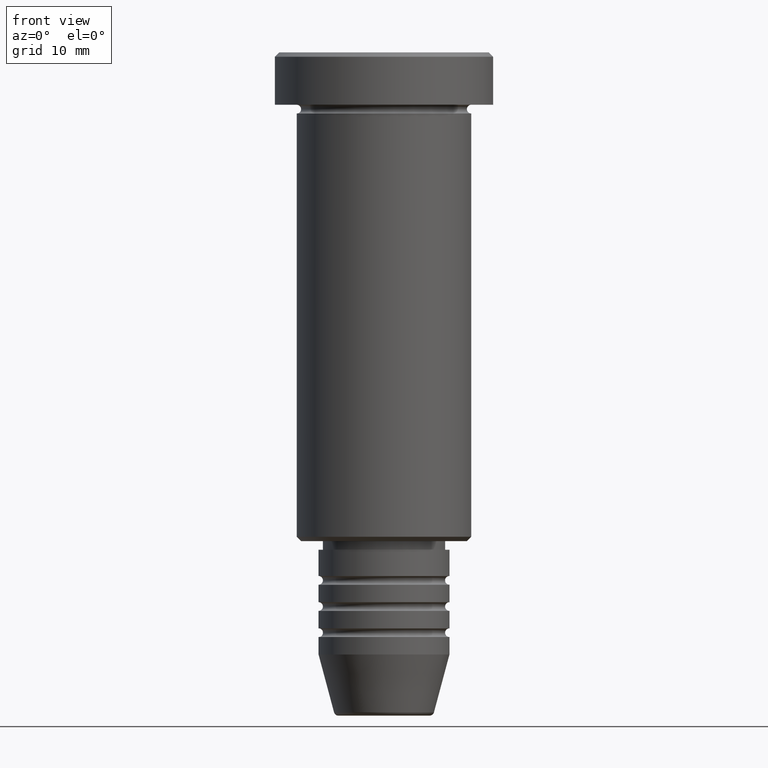
[diagram: clean part render]
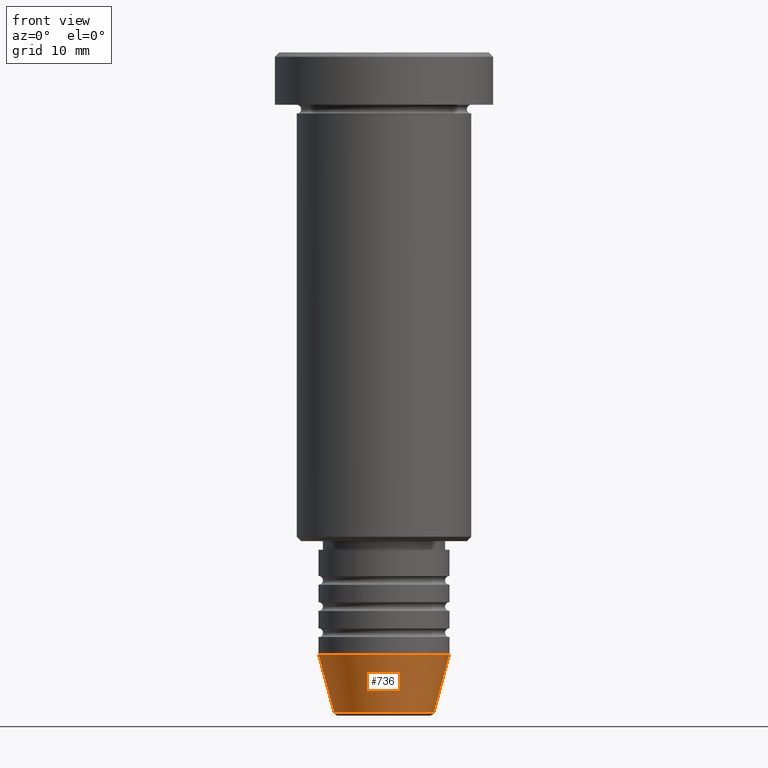
[diagram: same view with one face highlighted and labeled with its STEP entity id]
A machine part, front view. The second image highlights one B-rep face of the part: STEP entity #736.
In plain terms, the highlighted conical surface has half-angle 15 deg.
Its self-contained STEP definition (entity closure, byte-faithful):
#33 = AXIS2_PLACEMENT_3D ( 'NONE', #481, #849, #108 ) ;
#45 = DIRECTION ( 'NONE',  ( 1.000000000000000000, 0.000000000000000000, 0.000000000000000000 ) ) ;
#54 = CARTESIAN_POINT ( 'NONE',  ( 0.000000000000000000, 0.000000000000000000, -69.00000000000000000 ) ) ;
#58 = VERTEX_POINT ( 'NONE', #288 ) ;
#108 = DIRECTION ( 'NONE',  ( 1.000000000000000000, 0.000000000000000000, 0.000000000000000000 ) ) ;
#129 = LINE ( 'NONE', #667, #439 ) ;
#134 = EDGE_CURVE ( 'NONE', #1095, #1103, #199, .T. ) ;
#171 = ORIENTED_EDGE ( 'NONE', *, *, #801, .F. ) ;
#199 = CIRCLE ( 'NONE', #271, 7.500000000000000000 ) ;
#271 = AXIS2_PLACEMENT_3D ( 'NONE', #54, #777, #45 ) ;
#281 = DIRECTION ( 'NONE',  ( -0.000000000000000000, -0.000000000000000000, 1.000000000000000000 ) ) ;
#288 = CARTESIAN_POINT ( 'NONE',  ( 5.723655072137191269, 0.000000000000000000, -75.62940952255127058 ) ) ;
#354 = ORIENTED_EDGE ( 'NONE', *, *, #134, .F. ) ;
#439 = VECTOR ( 'NONE', #679, 1000.000000000000000 ) ;
#481 = CARTESIAN_POINT ( 'NONE',  ( 0.000000000000000000, 0.000000000000000000, -75.62940952255127058 ) ) ;
#533 = CARTESIAN_POINT ( 'NONE',  ( 7.500000000000000000, 0.000000000000000000, -69.00000000000000000 ) ) ;
#550 = VERTEX_POINT ( 'NONE', #763 ) ;
#612 = DIRECTION ( 'NONE',  ( 0.2588190451025213501, 0.000000000000000000, 0.9659258262890680902 ) ) ;
#613 = CIRCLE ( 'NONE', #33, 5.723655072137191269 ) ;
#667 = CARTESIAN_POINT ( 'NONE',  ( -7.500000000000000000, 9.184850993605147944E-16, -69.00000000000000000 ) ) ;
#679 = DIRECTION ( 'NONE',  ( -0.2588190451025213501, 3.169619151431772337E-17, 0.9659258262890680902 ) ) ;
#712 = AXIS2_PLACEMENT_3D ( 'NONE', #991, #281, #913 ) ;
#722 = CARTESIAN_POINT ( 'NONE',  ( 7.500000000000000000, 0.000000000000000000, -69.00000000000000000 ) ) ;
#736 = ADVANCED_FACE ( 'NONE', ( #907 ), #947, .T. ) ;
#740 = ORIENTED_EDGE ( 'NONE', *, *, #878, .T. ) ;
#763 = CARTESIAN_POINT ( 'NONE',  ( -5.723655072137190380, 8.097153428560735915E-16, -75.62940952255127058 ) ) ;
#777 = DIRECTION ( 'NONE',  ( -0.000000000000000000, -0.000000000000000000, 1.000000000000000000 ) ) ;
#801 = EDGE_CURVE ( 'NONE', #550, #1095, #129, .T. ) ;
#849 = DIRECTION ( 'NONE',  ( -0.000000000000000000, -0.000000000000000000, 1.000000000000000000 ) ) ;
#878 = EDGE_CURVE ( 'NONE', #550, #58, #613, .T. ) ;
#907 = FACE_OUTER_BOUND ( 'NONE', #1142, .T. ) ;
#913 = DIRECTION ( 'NONE',  ( 1.000000000000000000, 0.000000000000000000, 0.000000000000000000 ) ) ;
#947 = CONICAL_SURFACE ( 'NONE', #712, 7.500000000000000000, 0.2617993877991500740 ) ;
#949 = VECTOR ( 'NONE', #612, 1000.000000000000000 ) ;
#991 = CARTESIAN_POINT ( 'NONE',  ( 0.000000000000000000, 0.000000000000000000, -69.00000000000000000 ) ) ;
#1065 = ORIENTED_EDGE ( 'NONE', *, *, #1130, .T. ) ;
#1095 = VERTEX_POINT ( 'NONE', #1163 ) ;
#1103 = VERTEX_POINT ( 'NONE', #533 ) ;
#1130 = EDGE_CURVE ( 'NONE', #58, #1103, #1181, .T. ) ;
#1142 = EDGE_LOOP ( 'NONE', ( #171, #740, #1065, #354 ) ) ;
#1163 = CARTESIAN_POINT ( 'NONE',  ( -7.500000000000000000, 9.184850993605147944E-16, -69.00000000000000000 ) ) ;
#1181 = LINE ( 'NONE', #722, #949 ) ;